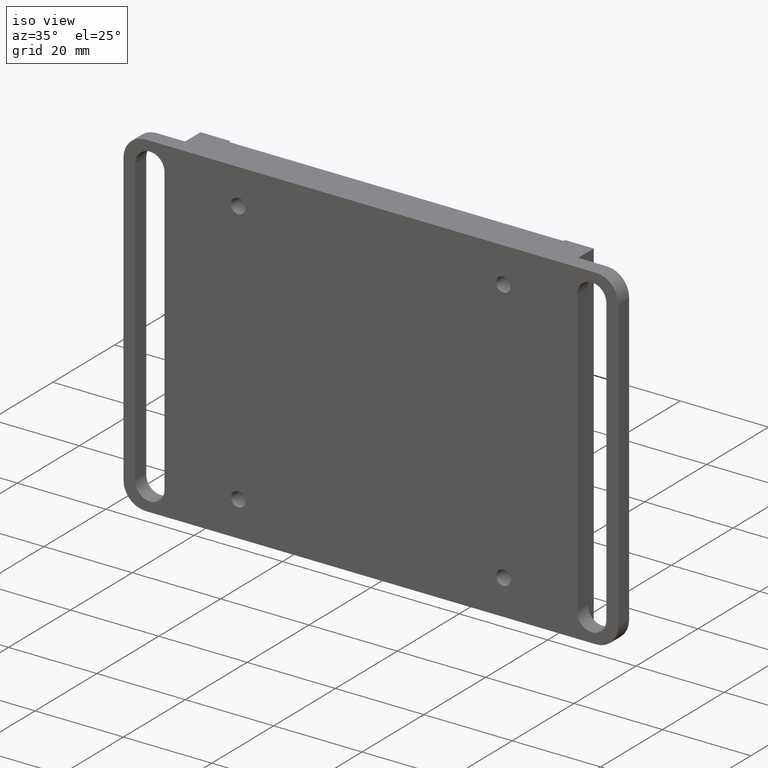
[diagram: clean part render]
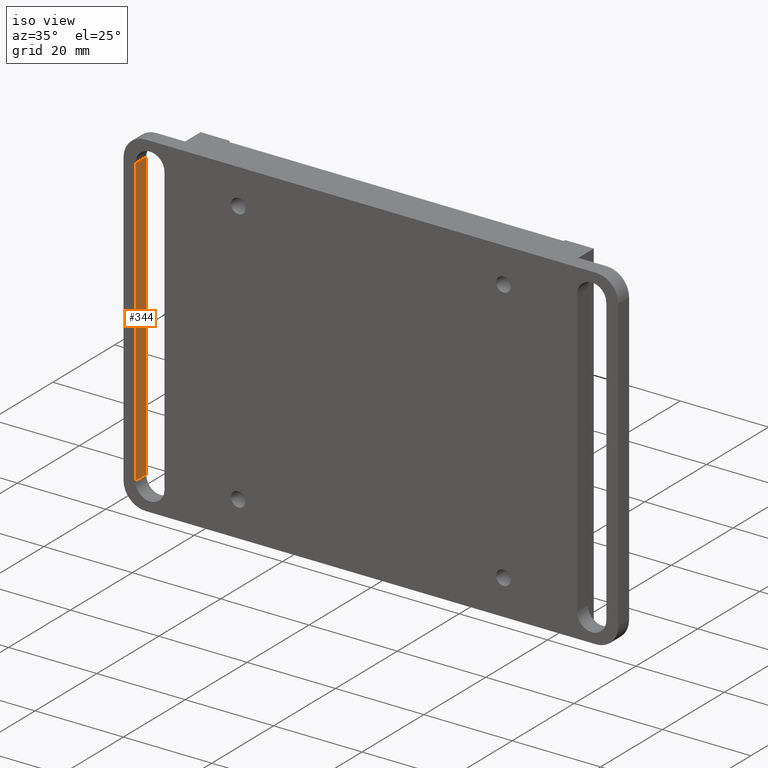
[diagram: same view with one face highlighted and labeled with its STEP entity id]
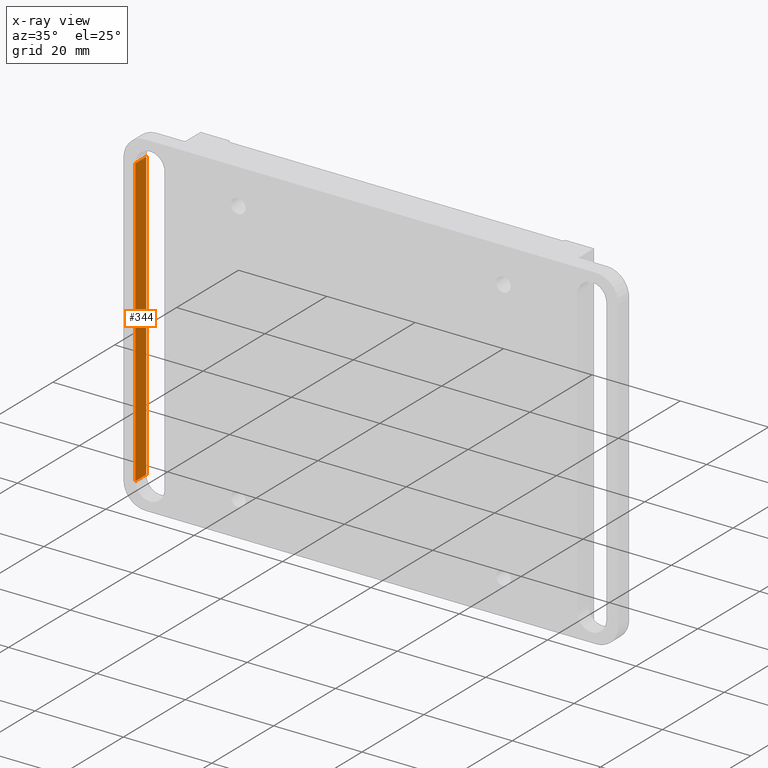
[diagram: x-ray of the same camera — body ghosted, the highlighted face saturated]
A machine part, iso view. The second image highlights one B-rep face of the part: STEP entity #344.
The next image is the same camera in x-ray: the body ghosted, the highlighted face saturated — about 0% of this face is hidden behind the body in this view.
In plain terms, the highlighted planar face has unit normal (-1, -0, 0).
Its self-contained STEP definition (entity closure, byte-faithful):
#20 = EDGE_CURVE ( 'NONE', #997, #969, #66, .T. ) ;
#62 = CARTESIAN_POINT ( 'NONE',  ( -53.30000000000003268, 3.499999999999999112, -32.50000000000000711 ) ) ;
#66 = LINE ( 'NONE', #460, #382 ) ;
#76 = ORIENTED_EDGE ( 'NONE', *, *, #20, .T. ) ;
#153 = ORIENTED_EDGE ( 'NONE', *, *, #1046, .T. ) ;
#160 = VECTOR ( 'NONE', #572, 1000.000000000000000 ) ;
#165 = CARTESIAN_POINT ( 'NONE',  ( -53.30000000000003268, -1.691355389077386917E-14, -32.50000000000000000 ) ) ;
#175 = CARTESIAN_POINT ( 'NONE',  ( -53.30000000000003268, -1.691355389077386917E-14, -32.50000000000000000 ) ) ;
#228 = DIRECTION ( 'NONE',  ( 0.000000000000000000, 0.000000000000000000, 1.000000000000000000 ) ) ;
#248 = CARTESIAN_POINT ( 'NONE',  ( -53.30000000000003268, -1.691355389077386917E-14, 32.50000000000000000 ) ) ;
#258 = VERTEX_POINT ( 'NONE', #524 ) ;
#266 = CARTESIAN_POINT ( 'NONE',  ( -53.30000000000003268, -1.691355389077386917E-14, -32.50000000000000000 ) ) ;
#276 = DIRECTION ( 'NONE',  ( 1.577021341797097067E-16, -1.000000000000000000, 0.000000000000000000 ) ) ;
#284 = DIRECTION ( 'NONE',  ( -1.000000000000000000, -1.577021341797097067E-16, 0.000000000000000000 ) ) ;
#311 = ORIENTED_EDGE ( 'NONE', *, *, #847, .F. ) ;
#324 = LINE ( 'NONE', #248, #160 ) ;
#325 = LINE ( 'NONE', #175, #366 ) ;
#344 = ADVANCED_FACE ( 'NONE', ( #863 ), #444, .F. ) ;
#366 = VECTOR ( 'NONE', #497, 1000.000000000000000 ) ;
#382 = VECTOR ( 'NONE', #228, 1000.000000000000000 ) ;
#444 = PLANE ( 'NONE',  #878 ) ;
#460 = CARTESIAN_POINT ( 'NONE',  ( -53.30000000000003268, 3.499999999999996891, -32.50000000000000000 ) ) ;
#497 = DIRECTION ( 'NONE',  ( 0.000000000000000000, 0.000000000000000000, 1.000000000000000000 ) ) ;
#524 = CARTESIAN_POINT ( 'NONE',  ( -53.30000000000003268, 0.000000000000000000, 32.50000000000000000 ) ) ;
#572 = DIRECTION ( 'NONE',  ( -1.577021341797097067E-16, 1.000000000000000000, -0.000000000000000000 ) ) ;
#638 = CARTESIAN_POINT ( 'NONE',  ( -53.30000000000003268, 3.499999999999996891, 32.50000000000000000 ) ) ;
#667 = EDGE_CURVE ( 'NONE', #949, #258, #325, .T. ) ;
#674 = ORIENTED_EDGE ( 'NONE', *, *, #667, .F. ) ;
#791 = VECTOR ( 'NONE', #842, 1000.000000000000000 ) ;
#838 = LINE ( 'NONE', #266, #791 ) ;
#842 = DIRECTION ( 'NONE',  ( -1.577021341797097067E-16, 1.000000000000000000, -0.000000000000000000 ) ) ;
#847 = EDGE_CURVE ( 'NONE', #258, #969, #324, .T. ) ;
#863 = FACE_OUTER_BOUND ( 'NONE', #990, .T. ) ;
#878 = AXIS2_PLACEMENT_3D ( 'NONE', #1001, #284, #276 ) ;
#949 = VERTEX_POINT ( 'NONE', #165 ) ;
#969 = VERTEX_POINT ( 'NONE', #638 ) ;
#990 = EDGE_LOOP ( 'NONE', ( #76, #311, #674, #153 ) ) ;
#997 = VERTEX_POINT ( 'NONE', #62 ) ;
#1001 = CARTESIAN_POINT ( 'NONE',  ( -53.30000000000003268, -1.691355389077386917E-14, -32.50000000000000000 ) ) ;
#1046 = EDGE_CURVE ( 'NONE', #949, #997, #838, .T. ) ;